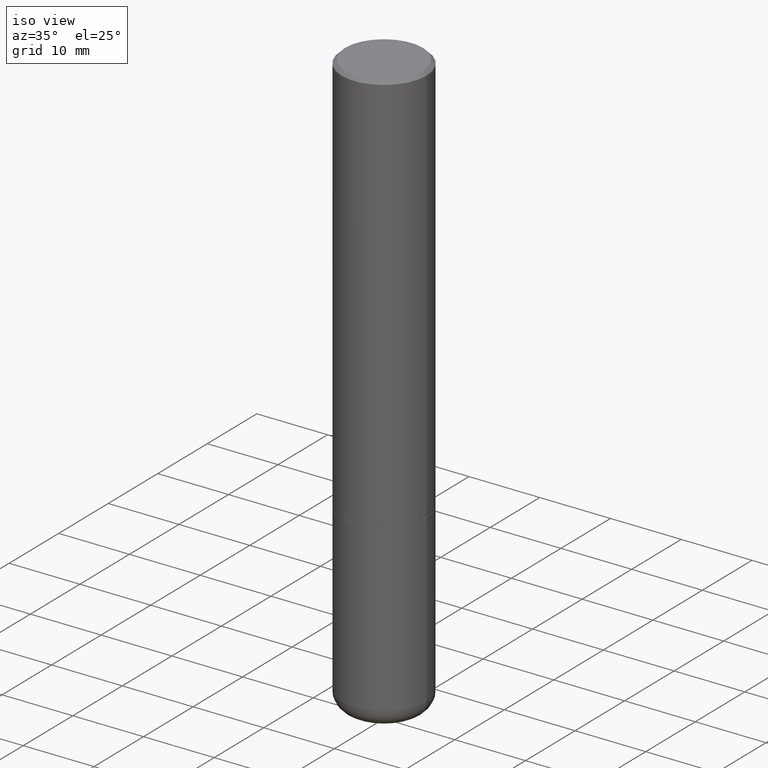
[diagram: clean part render]
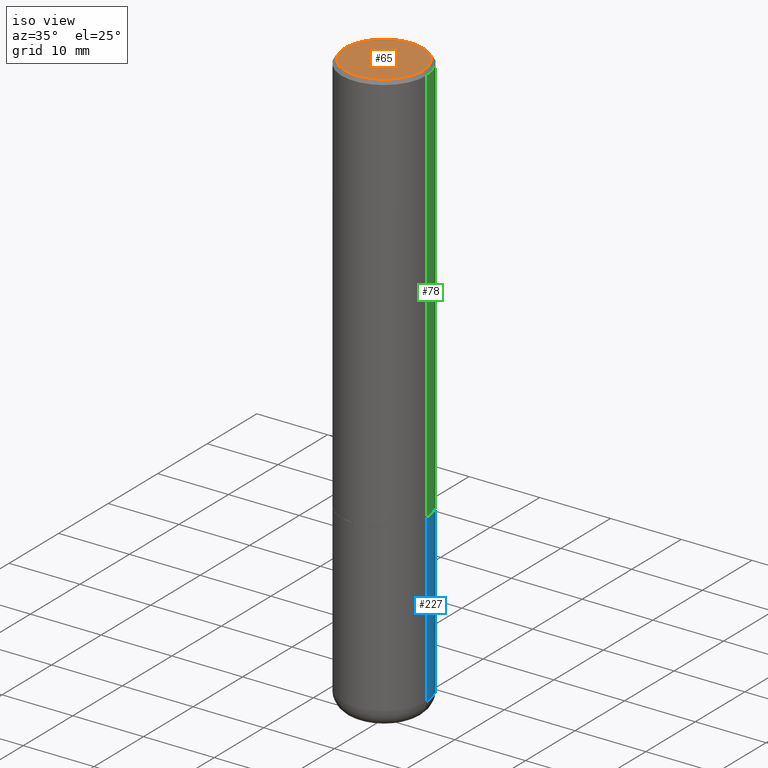
[diagram: same view with three faces highlighted in distinct colors, each labeled with its STEP entity id]
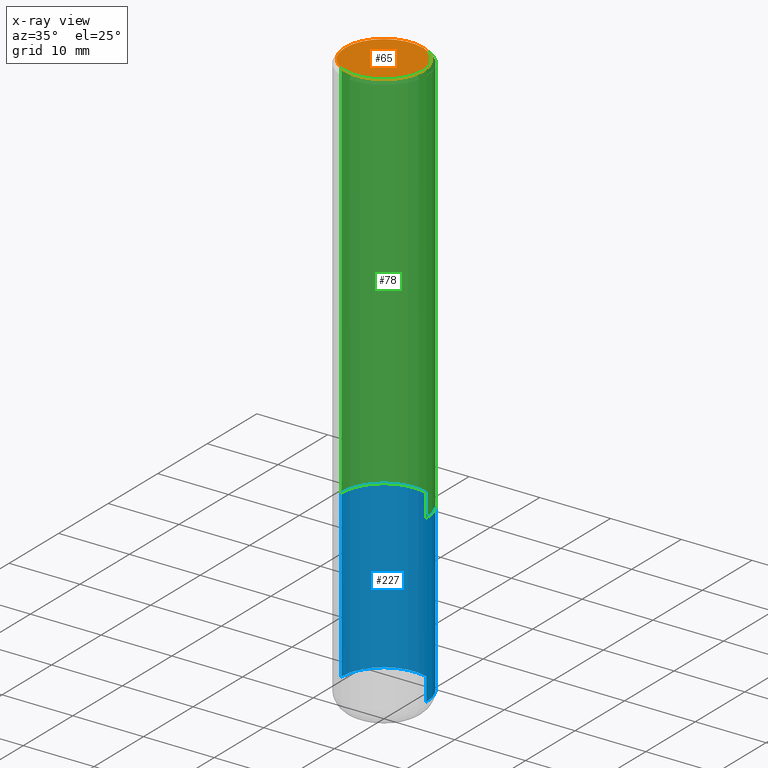
[diagram: x-ray of the same camera — body ghosted, the three highlighted faces saturated]
A machine part, iso view with three faces highlighted in distinct colors.
The next image is the same camera in x-ray (body ghosted, the three faces saturated) — at least one of them is partly hidden behind the body in this view.
Their STEP definitions:

[orange] entity #65 — the highlighted planar face has unit normal (0, -0, -1).
#1 = DIRECTION ( 'NONE',  ( -2.445468806185136597E-29, 3.491481338843145583E-15, 1.000000000000000000 ) ) ;
#11 = FACE_OUTER_BOUND ( 'NONE', #162, .T. ) ;
#24 = ORIENTED_EDGE ( 'NONE', *, *, #342, .T. ) ;
#43 = PLANE ( 'NONE',  #282 ) ;
#65 = ADVANCED_FACE ( 'NONE', ( #11 ), #43, .F. ) ;
#89 = CIRCLE ( 'NONE', #413, 0.2161999999999999478 ) ;
#102 = CARTESIAN_POINT ( 'NONE',  ( -7.306959900346538153E-46, 1.043240219266313067E-31, 2.987958743070287587E-17 ) ) ;
#110 = ORIENTED_EDGE ( 'NONE', *, *, #355, .T. ) ;
#120 = CIRCLE ( 'NONE', #326, 0.2161999999999999478 ) ;
#143 = CARTESIAN_POINT ( 'NONE',  ( 1.509716530915770323E-15, 0.2161999999999999478, -7.399184717425363306E-16 ) ) ;
#150 = DIRECTION ( 'NONE',  ( -1.000000000000000000, 6.982962677686265922E-15, -4.876176775795935793E-29 ) ) ;
#152 = CARTESIAN_POINT ( 'NONE',  ( 0.2161999999999999478, -1.586759460484351396E-15, 2.987958743071370422E-17 ) ) ;
#161 = VERTEX_POINT ( 'NONE', #152 ) ;
#162 = EDGE_LOOP ( 'NONE', ( #110, #24 ) ) ;
#176 = DIRECTION ( 'NONE',  ( 1.000000000000000000, -6.982962677686266711E-15, 4.876655451117826644E-29 ) ) ;
#187 = CARTESIAN_POINT ( 'NONE',  ( -0.2161999999999999478, 1.544631344304201775E-15, 2.987958743069220160E-17 ) ) ;
#188 = VERTEX_POINT ( 'NONE', #187 ) ;
#244 = DIRECTION ( 'NONE',  ( 1.000000000000000000, -6.982962677686266711E-15, 4.876655451117826644E-29 ) ) ;
#282 = AXIS2_PLACEMENT_3D ( 'NONE', #143, #384, #150 ) ;
#306 = CARTESIAN_POINT ( 'NONE',  ( -7.306959900346538153E-46, 1.043240219266313067E-31, 2.987958743070287587E-17 ) ) ;
#326 = AXIS2_PLACEMENT_3D ( 'NONE', #306, #392, #176 ) ;
#342 = EDGE_CURVE ( 'NONE', #161, #188, #89, .T. ) ;
#355 = EDGE_CURVE ( 'NONE', #188, #161, #120, .T. ) ;
#384 = DIRECTION ( 'NONE',  ( 2.438088387897960049E-29, -3.491481338843145188E-15, -1.000000000000000000 ) ) ;
#392 = DIRECTION ( 'NONE',  ( -2.445468806185136597E-29, 3.491481338843145583E-15, 1.000000000000000000 ) ) ;
#413 = AXIS2_PLACEMENT_3D ( 'NONE', #102, #1, #244 ) ;

[blue] entity #227 — the highlighted cylindrical surface (partial cylindrical patch) has radius 5.9995 mm, axis along (-0, 0, 1).
#4 = CARTESIAN_POINT ( 'NONE',  ( -0.2361999999999999933, 1.678301941865356591E-15, -1.161852468318208757E-29 ) ) ;
#6 = CIRCLE ( 'NONE', #94, 0.2362000000000000210 ) ;
#19 = CARTESIAN_POINT ( 'NONE',  ( 0.2361999999999999933, -1.649375784469496131E-15, 1.151752954443000088E-29 ) ) ;
#58 = DIRECTION ( 'NONE',  ( 1.000000000000000000, -6.982962677686269077E-15, 0.000000000000000000 ) ) ;
#68 = CIRCLE ( 'NONE', #313, 0.2361999999999999933 ) ;
#93 = VECTOR ( 'NONE', #139, 39.37007874015748143 ) ;
#94 = AXIS2_PLACEMENT_3D ( 'NONE', #395, #387, #338 ) ;
#98 = DIRECTION ( 'NONE',  ( 1.000000000000000000, -6.982962677686266711E-15, 4.876176775795936353E-29 ) ) ;
#100 = EDGE_LOOP ( 'NONE', ( #236, #234, #354, #127 ) ) ;
#124 = EDGE_CURVE ( 'NONE', #205, #298, #6, .T. ) ;
#127 = ORIENTED_EDGE ( 'NONE', *, *, #179, .F. ) ;
#139 = DIRECTION ( 'NONE',  ( -2.445468806185136877E-29, 3.491481338843145188E-15, 1.000000000000000000 ) ) ;
#141 = AXIS2_PLACEMENT_3D ( 'NONE', #297, #302, #98 ) ;
#179 = EDGE_CURVE ( 'NONE', #205, #348, #191, .T. ) ;
#191 = LINE ( 'NONE', #19, #256 ) ;
#192 = EDGE_CURVE ( 'NONE', #348, #231, #68, .T. ) ;
#205 = VERTEX_POINT ( 'NONE', #260 ) ;
#227 = ADVANCED_FACE ( 'NONE', ( #405 ), #258, .T. ) ;
#231 = VERTEX_POINT ( 'NONE', #412 ) ;
#233 = LINE ( 'NONE', #4, #93 ) ;
#234 = ORIENTED_EDGE ( 'NONE', *, *, #324, .T. ) ;
#236 = ORIENTED_EDGE ( 'NONE', *, *, #124, .T. ) ;
#256 = VECTOR ( 'NONE', #291, 39.37007874015748143 ) ;
#258 = CYLINDRICAL_SURFACE ( 'NONE', #141, 0.2361999999999999933 ) ;
#260 = CARTESIAN_POINT ( 'NONE',  ( 0.2362000000000000766, -1.271492759166507844E-14, -3.169299999999999784 ) ) ;
#291 = DIRECTION ( 'NONE',  ( -2.445468806185136877E-29, 3.491481338843145188E-15, 1.000000000000000000 ) ) ;
#293 = CARTESIAN_POINT ( 'NONE',  ( -0.2362000000000000766, -9.387249865330223945E-15, -3.169299999999999784 ) ) ;
#297 = CARTESIAN_POINT ( 'NONE',  ( 0.000000000000000000, 0.000000000000000000, 0.000000000000000000 ) ) ;
#298 = VERTEX_POINT ( 'NONE', #293 ) ;
#302 = DIRECTION ( 'NONE',  ( -2.445468806185136597E-29, 3.491481338843145583E-15, 1.000000000000000000 ) ) ;
#313 = AXIS2_PLACEMENT_3D ( 'NONE', #402, #346, #58 ) ;
#324 = EDGE_CURVE ( 'NONE', #298, #231, #233, .T. ) ;
#336 = CARTESIAN_POINT ( 'NONE',  ( 0.2361999999999999933, -9.484609056967400443E-15, -2.244100000000000428 ) ) ;
#338 = DIRECTION ( 'NONE',  ( 1.000000000000000000, -6.982962677686264344E-15, 0.000000000000000000 ) ) ;
#346 = DIRECTION ( 'NONE',  ( -2.445468806185136597E-29, 3.491481338843145583E-15, 1.000000000000000000 ) ) ;
#348 = VERTEX_POINT ( 'NONE', #336 ) ;
#354 = ORIENTED_EDGE ( 'NONE', *, *, #192, .F. ) ;
#387 = DIRECTION ( 'NONE',  ( -2.445468806185136597E-29, 3.491481338843145583E-15, 1.000000000000000000 ) ) ;
#395 = CARTESIAN_POINT ( 'NONE',  ( 7.750424287442554569E-29, -1.106555180719558034E-14, -3.169299999999999784 ) ) ;
#402 = CARTESIAN_POINT ( 'NONE',  ( 5.487876547960065873E-29, -7.835233272497903917E-15, -2.244100000000000428 ) ) ;
#405 = FACE_OUTER_BOUND ( 'NONE', #100, .T. ) ;
#412 = CARTESIAN_POINT ( 'NONE',  ( -0.2361999999999999933, -7.772090597981385734E-15, -2.244100000000000428 ) ) ;

[green] entity #78 — the highlighted cylindrical surface (partial cylindrical patch) has radius 5.9995 mm, axis along (-0, 0, 1).
#2 = ORIENTED_EDGE ( 'NONE', *, *, #183, .F. ) ;
#7 = EDGE_LOOP ( 'NONE', ( #357, #174, #95, #2 ) ) ;
#10 = EDGE_CURVE ( 'NONE', #328, #106, #70, .T. ) ;
#12 = DIRECTION ( 'NONE',  ( -2.445468806185136597E-29, 3.491481338843145583E-15, 1.000000000000000000 ) ) ;
#20 = VECTOR ( 'NONE', #257, 39.37007874015748143 ) ;
#33 = VERTEX_POINT ( 'NONE', #158 ) ;
#36 = CYLINDRICAL_SURFACE ( 'NONE', #266, 0.2362000000000001321 ) ;
#38 = CARTESIAN_POINT ( 'NONE',  ( -0.2362000000000001321, 1.678301941865357577E-15, -1.161852468318209457E-29 ) ) ;
#42 = CARTESIAN_POINT ( 'NONE',  ( 5.485431079153880270E-29, -7.831741791159060910E-15, -2.243100000000000094 ) ) ;
#46 = CARTESIAN_POINT ( 'NONE',  ( -0.2361999999999999655, 1.579546157692632833E-15, -0.02000000000000005246 ) ) ;
#70 = LINE ( 'NONE', #38, #165 ) ;
#78 = ADVANCED_FACE ( 'NONE', ( #330 ), #36, .T. ) ;
#82 = DIRECTION ( 'NONE',  ( 1.000000000000000000, -6.982962677686266711E-15, 4.876176775795936353E-29 ) ) ;
#95 = ORIENTED_EDGE ( 'NONE', *, *, #383, .F. ) ;
#96 = CIRCLE ( 'NONE', #416, 0.2362000000000002709 ) ;
#106 = VERTEX_POINT ( 'NONE', #46 ) ;
#109 = CARTESIAN_POINT ( 'NONE',  ( -0.2362000000000002986, -2.272483767102600582E-15, -2.243100000000000094 ) ) ;
#118 = DIRECTION ( 'NONE',  ( 1.000000000000000000, -6.982962677686269077E-15, 0.000000000000000000 ) ) ;
#125 = LINE ( 'NONE', #408, #20 ) ;
#132 = AXIS2_PLACEMENT_3D ( 'NONE', #329, #12, #358 ) ;
#158 = CARTESIAN_POINT ( 'NONE',  ( 0.2362000000000002709, -9.481117575628559013E-15, -2.243100000000000094 ) ) ;
#165 = VECTOR ( 'NONE', #171, 39.37007874015748143 ) ;
#171 = DIRECTION ( 'NONE',  ( -2.445468806185136877E-29, 3.491481338843145188E-15, 1.000000000000000000 ) ) ;
#174 = ORIENTED_EDGE ( 'NONE', *, *, #10, .T. ) ;
#183 = EDGE_CURVE ( 'NONE', #33, #261, #125, .T. ) ;
#186 = CIRCLE ( 'NONE', #132, 0.2361999999999999655 ) ;
#257 = DIRECTION ( 'NONE',  ( -2.445468806185136877E-29, 3.491481338843145188E-15, 1.000000000000000000 ) ) ;
#261 = VERTEX_POINT ( 'NONE', #352 ) ;
#266 = AXIS2_PLACEMENT_3D ( 'NONE', #309, #337, #82 ) ;
#309 = CARTESIAN_POINT ( 'NONE',  ( 0.000000000000000000, 0.000000000000000000, 0.000000000000000000 ) ) ;
#328 = VERTEX_POINT ( 'NONE', #109 ) ;
#329 = CARTESIAN_POINT ( 'NONE',  ( 4.890937612370285420E-31, -6.982962677686308865E-17, -0.02000000000000005246 ) ) ;
#330 = FACE_OUTER_BOUND ( 'NONE', #7, .T. ) ;
#337 = DIRECTION ( 'NONE',  ( -2.445468806185136597E-29, 3.491481338843145583E-15, 1.000000000000000000 ) ) ;
#352 = CARTESIAN_POINT ( 'NONE',  ( 0.2361999999999999655, -1.690279253850498574E-15, -0.02000000000000005246 ) ) ;
#357 = ORIENTED_EDGE ( 'NONE', *, *, #393, .T. ) ;
#358 = DIRECTION ( 'NONE',  ( 1.000000000000000000, -6.982962677686266711E-15, 0.000000000000000000 ) ) ;
#360 = DIRECTION ( 'NONE',  ( -2.445468806185136597E-29, 3.491481338843145583E-15, 1.000000000000000000 ) ) ;
#383 = EDGE_CURVE ( 'NONE', #261, #106, #186, .T. ) ;
#393 = EDGE_CURVE ( 'NONE', #33, #328, #96, .T. ) ;
#408 = CARTESIAN_POINT ( 'NONE',  ( 0.2362000000000001321, -1.649375784469497117E-15, 1.151752954443000789E-29 ) ) ;
#416 = AXIS2_PLACEMENT_3D ( 'NONE', #42, #360, #118 ) ;